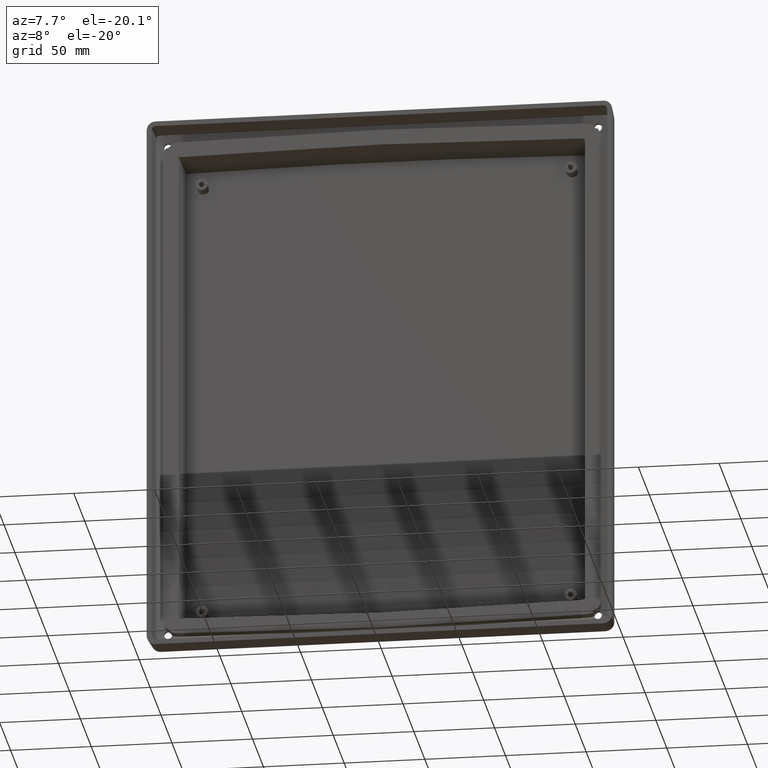
[diagram: clean part render]
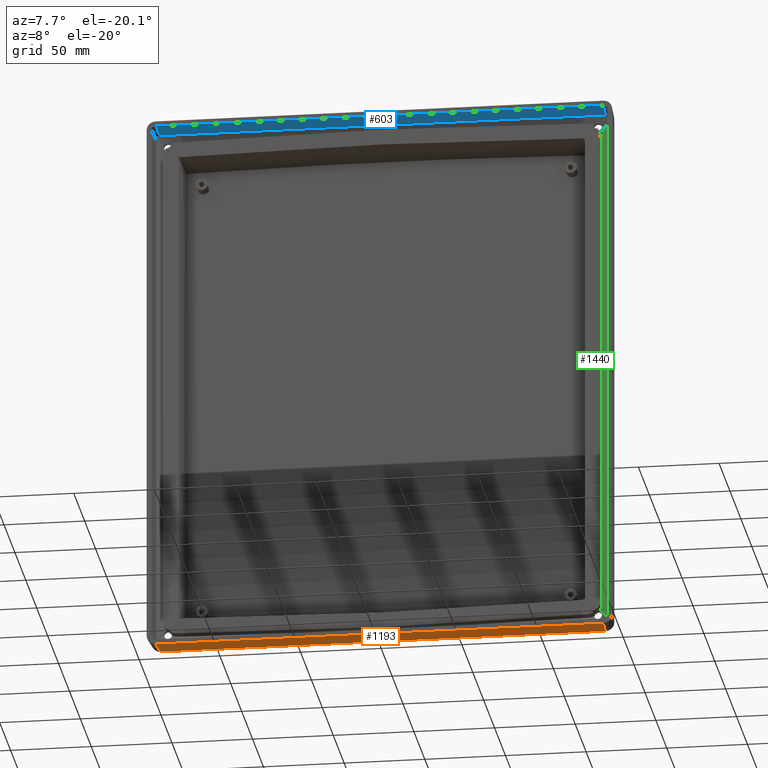
[diagram: same view with three faces highlighted in distinct colors, each labeled with its STEP entity id]
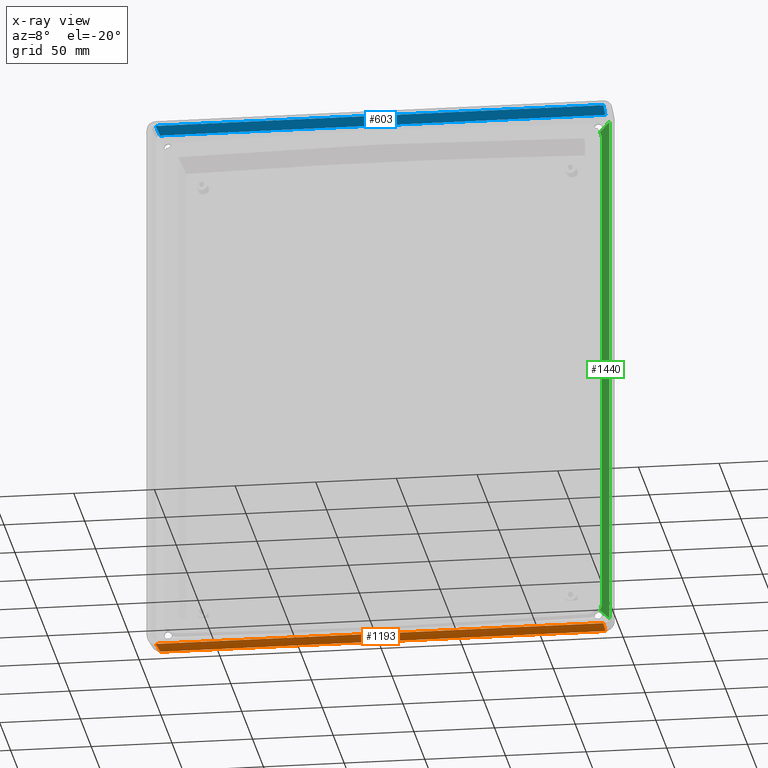
[diagram: x-ray of the same camera — body ghosted, the three highlighted faces saturated]
A machine part, auxiliary view with three faces highlighted in distinct colors.
The next image is the same camera in x-ray (body ghosted, the three faces saturated) — at least one of them is partly hidden behind the body in this view.
Their STEP definitions:

[orange] entity #1193 — the highlighted planar face has unit normal (-0, 0.0523, -0.9986).
#281 = CARTESIAN_POINT ( 'NONE',  ( 137.9152123604510200, 8.440067571076294700, -170.0576748016010500 ) ) ;
#315 = CARTESIAN_POINT ( 'NONE',  ( 136.8464257797896800, 8.467449213979881200, -170.0562397905033500 ) ) ;
#366 = CARTESIAN_POINT ( 'NONE',  ( -137.5866678021376400, 14.70907119626331500, -169.7291302432876700 ) ) ;
#643 = DIRECTION ( 'NONE',  ( 0.0000000000000000000, 0.9986295347545739400, 0.05233595624294395300 ) ) ;
#675 = CARTESIAN_POINT ( 'NONE',  ( 137.8162624004990000, 8.467449213979877600, -170.0562397905033500 ) ) ;
#764 = VECTOR ( 'NONE', #6205, 1000.000000000000200 ) ;
#1117 = DIRECTION ( 'NONE',  ( -0.0000000000000000000, 0.05233595624294395300, -0.9986295347545739400 ) ) ;
#1123 = VERTEX_POINT ( 'NONE', #4908 ) ;
#1193 = ADVANCED_FACE ( 'NONE', ( #5084 ), #2160, .T. ) ;
#1216 = CARTESIAN_POINT ( 'NONE',  ( -138.7767997931142100, -7.999999999999996400, -170.9192622342643200 ) ) ;
#1300 = ORIENTED_EDGE ( 'NONE', *, *, #5568, .T. ) ;
#1462 = CARTESIAN_POINT ( 'NONE',  ( -136.8464257797896300, 8.467449213979881200, -170.0562397905033500 ) ) ;
#1614 = VERTEX_POINT ( 'NONE', #1750 ) ;
#1627 = EDGE_CURVE ( 'NONE', #4216, #2292, #2749, .T. ) ;
#1691 = CARTESIAN_POINT ( 'NONE',  ( 136.3151442959592400, 8.467449213979877600, -170.0562397905033500 ) ) ;
#1699 = DIRECTION ( 'NONE',  ( 0.05226442768871404600, -0.9972646886342372300, -0.05226442768871403200 ) ) ;
#1750 = CARTESIAN_POINT ( 'NONE',  ( -136.3151442959592100, 8.467449213979877600, -170.0562397905033500 ) ) ;
#2003 = EDGE_LOOP ( 'NONE', ( #3831, #5526, #3432, #2868, #6070, #1300 ) ) ;
#2127 = DIRECTION ( 'NONE',  ( 1.000000000000000000, -0.0000000000000000000, -0.0000000000000000000 ) ) ;
#2141 = VERTEX_POINT ( 'NONE', #3535 ) ;
#2160 = PLANE ( 'NONE',  #5912 ) ;
#2164 = CARTESIAN_POINT ( 'NONE',  ( 138.3725406066862400, -0.2862752064970354200, -170.5150030478363000 ) ) ;
#2250 = CARTESIAN_POINT ( 'NONE',  ( 137.9152123604510200, 8.440067571076294700, -170.0576748016010500 ) ) ;
#2292 = VERTEX_POINT ( 'NONE', #2696 ) ;
#2302 = DIRECTION ( 'NONE',  ( 1.000000000000000000, -0.0000000000000000000, -0.0000000000000000000 ) ) ;
#2321 = VERTEX_POINT ( 'NONE', #2250 ) ;
#2639 = EDGE_CURVE ( 'NONE', #2321, #2141, #6273, .T. ) ;
#2696 = CARTESIAN_POINT ( 'NONE',  ( -137.9152123604510200, 8.440067571076300000, -170.0576748016010500 ) ) ;
#2711 = VECTOR ( 'NONE', #1699, 1000.000000000000200 ) ;
#2749 = LINE ( 'NONE', #366, #764 ) ;
#2868 = ORIENTED_EDGE ( 'NONE', *, *, #5927, .F. ) ;
#2924 = EDGE_CURVE ( 'NONE', #1123, #2321, #4514, .T. ) ;
#3078 =( BOUNDED_CURVE ( )  B_SPLINE_CURVE ( 3, ( #5829, #5363, #1462, #6290 ),
 .UNSPECIFIED., .F., .F. ) 
 B_SPLINE_CURVE_WITH_KNOTS ( ( 4, 4 ),
 ( 1.890229128489397300, 1.936731009849348000 ),
 .UNSPECIFIED. ) 
 CURVE ( )  GEOMETRIC_REPRESENTATION_ITEM ( )  RATIONAL_B_SPLINE_CURVE ( ( 1.000000000000000000, 0.9998198060372166500, 0.9998198060372166500, 1.000000000000000000 ) ) 
 REPRESENTATION_ITEM ( '' )  );
#3292 = VECTOR ( 'NONE', #2302, 1000.000000000000000 ) ;
#3432 = ORIENTED_EDGE ( 'NONE', *, *, #2639, .T. ) ;
#3535 = CARTESIAN_POINT ( 'NONE',  ( 138.7767997931142600, -7.999999999999996400, -170.9192622342643200 ) ) ;
#3611 = LINE ( 'NONE', #6165, #3292 ) ;
#3831 = ORIENTED_EDGE ( 'NONE', *, *, #4244, .T. ) ;
#4216 = VERTEX_POINT ( 'NONE', #1216 ) ;
#4244 = EDGE_CURVE ( 'NONE', #1614, #1123, #6101, .T. ) ;
#4514 =( BOUNDED_CURVE ( )  B_SPLINE_CURVE ( 3, ( #1691, #315, #5067, #281 ),
 .UNSPECIFIED., .F., .F. ) 
 B_SPLINE_CURVE_WITH_KNOTS ( ( 4, 4 ),
 ( 4.346454297330240000, 4.392956178690188700 ),
 .UNSPECIFIED. ) 
 CURVE ( )  GEOMETRIC_REPRESENTATION_ITEM ( )  RATIONAL_B_SPLINE_CURVE ( ( 1.000000000000000000, 0.9998198060372166500, 0.9998198060372166500, 1.000000000000000000 ) ) 
 REPRESENTATION_ITEM ( '' )  );
#4762 = VECTOR ( 'NONE', #2127, 1000.000000000000000 ) ;
#4908 = CARTESIAN_POINT ( 'NONE',  ( 136.3151442959592400, 8.467449213979877600, -170.0562397905033500 ) ) ;
#5067 = CARTESIAN_POINT ( 'NONE',  ( 137.3798779261431100, 8.458320354713361400, -170.0567182137449200 ) ) ;
#5084 = FACE_OUTER_BOUND ( 'NONE', #2003, .T. ) ;
#5363 = CARTESIAN_POINT ( 'NONE',  ( -137.3798779261431100, 8.458320354713357900, -170.0567182137449200 ) ) ;
#5511 = CARTESIAN_POINT ( 'NONE',  ( 143.8500000000000800, 0.0000000000000000000, -170.4999999999999700 ) ) ;
#5526 = ORIENTED_EDGE ( 'NONE', *, *, #2924, .T. ) ;
#5568 = EDGE_CURVE ( 'NONE', #2292, #1614, #3078, .T. ) ;
#5829 = CARTESIAN_POINT ( 'NONE',  ( -137.9152123604510200, 8.440067571076300000, -170.0576748016010500 ) ) ;
#5912 = AXIS2_PLACEMENT_3D ( 'NONE', #5511, #1117, #643 ) ;
#5927 = EDGE_CURVE ( 'NONE', #4216, #2141, #3611, .T. ) ;
#6070 = ORIENTED_EDGE ( 'NONE', *, *, #1627, .T. ) ;
#6101 = LINE ( 'NONE', #675, #4762 ) ;
#6165 = CARTESIAN_POINT ( 'NONE',  ( 143.8500000000000800, -7.999999999999996400, -170.9192622342643200 ) ) ;
#6205 = DIRECTION ( 'NONE',  ( 0.05226442768871406700, 0.9972646886342372300, 0.05226442768871403200 ) ) ;
#6273 = LINE ( 'NONE', #2164, #2711 ) ;
#6290 = CARTESIAN_POINT ( 'NONE',  ( -136.3151442959592100, 8.467449213979877600, -170.0562397905033500 ) ) ;

[blue] entity #603 — the highlighted planar face has unit normal (0, 0.0523, 0.9986).
#62 = CARTESIAN_POINT ( 'NONE',  ( -138.7685713593840500, -7.999999999999998200, 167.9151451962706600 ) ) ;
#83 = ORIENTED_EDGE ( 'NONE', *, *, #4878, .F. ) ;
#332 = VERTEX_POINT ( 'NONE', #2533 ) ;
#401 = CARTESIAN_POINT ( 'NONE',  ( -136.4349168177184000, 7.130623004086821500, 167.1221828454575900 ) ) ;
#603 = ADVANCED_FACE ( 'NONE', ( #4397 ), #2335, .F. ) ;
#678 = VERTEX_POINT ( 'NONE', #3771 ) ;
#884 = VERTEX_POINT ( 'NONE', #4245 ) ;
#914 = CARTESIAN_POINT ( 'NONE',  ( -135.6694227875672400, 7.130623004086811700, 167.1221828454575900 ) ) ;
#1174 = VECTOR ( 'NONE', #3449, 1000.000000000000100 ) ;
#1192 = CARTESIAN_POINT ( 'NONE',  ( 135.6694227875672700, 7.130623004086817000, 167.1221828454575300 ) ) ;
#1256 = CARTESIAN_POINT ( 'NONE',  ( -143.3259222071695000, 7.130623004086818800, 167.1221828454575900 ) ) ;
#1467 = ORIENTED_EDGE ( 'NONE', *, *, #5158, .F. ) ;
#1603 = CARTESIAN_POINT ( 'NONE',  ( -143.8499999999999100, -7.999999999999996400, 167.9151451962706600 ) ) ;
#1905 =( BOUNDED_CURVE ( )  B_SPLINE_CURVE ( 3, ( #5497, #5475, #2597, #5956 ),
 .UNSPECIFIED., .F., .F. ) 
 B_SPLINE_CURVE_WITH_KNOTS ( ( 4, 4 ),
 ( 1.865676848984718200, 1.936731009849348000 ),
 .UNSPECIFIED. ) 
 CURVE ( )  GEOMETRIC_REPRESENTATION_ITEM ( )  RATIONAL_B_SPLINE_CURVE ( ( 1.000000000000000000, 0.9995793197690625600, 0.9995793197690625600, 1.000000000000000000 ) ) 
 REPRESENTATION_ITEM ( '' )  );
#2257 = DIRECTION ( 'NONE',  ( -1.000000000000000000, 1.516529711244633500E-019, 1.929400926329865600E-016 ) ) ;
#2322 = LINE ( 'NONE', #1603, #4564 ) ;
#2335 = PLANE ( 'NONE',  #2442 ) ;
#2442 = AXIS2_PLACEMENT_3D ( 'NONE', #4753, #5209, #4251 ) ;
#2533 = CARTESIAN_POINT ( 'NONE',  ( 138.7685713593841700, -7.999999999999996400, 167.9151451962706000 ) ) ;
#2568 = VECTOR ( 'NONE', #2257, 1000.000000000000000 ) ;
#2589 = DIRECTION ( 'NONE',  ( -0.05226442768871402500, 0.9972646886342372300, -0.05226442768871402500 ) ) ;
#2597 = CARTESIAN_POINT ( 'NONE',  ( 136.4349168177184600, 7.130623004086828600, 167.1221828454575600 ) ) ;
#2642 = LINE ( 'NONE', #1256, #2568 ) ;
#3235 = EDGE_LOOP ( 'NONE', ( #4051, #5111, #6301, #83, #3673, #1467 ) ) ;
#3370 = VECTOR ( 'NONE', #2589, 1000.000000000000100 ) ;
#3426 = VERTEX_POINT ( 'NONE', #1192 ) ;
#3449 = DIRECTION ( 'NONE',  ( -0.05226442768871401200, -0.9972646886342372300, 0.05226442768871403900 ) ) ;
#3654 = EDGE_CURVE ( 'NONE', #4291, #5616, #4036, .T. ) ;
#3673 = ORIENTED_EDGE ( 'NONE', *, *, #6162, .F. ) ;
#3771 = CARTESIAN_POINT ( 'NONE',  ( -135.6694227875672400, 7.130623004086811700, 167.1221828454575900 ) ) ;
#3839 = EDGE_CURVE ( 'NONE', #678, #4291, #5406, .T. ) ;
#3850 = CARTESIAN_POINT ( 'NONE',  ( -137.9787671725336200, 7.070361645833148000, 167.1253410094202300 ) ) ;
#4036 = LINE ( 'NONE', #4849, #1174 ) ;
#4051 = ORIENTED_EDGE ( 'NONE', *, *, #6083, .T. ) ;
#4245 = CARTESIAN_POINT ( 'NONE',  ( 137.9787671725337400, 7.070361645833151500, 167.1253410094201700 ) ) ;
#4251 = DIRECTION ( 'NONE',  ( 0.0000000000000000000, -0.9986295347545739400, 0.05233595624294395300 ) ) ;
#4291 = VERTEX_POINT ( 'NONE', #5155 ) ;
#4397 = FACE_OUTER_BOUND ( 'NONE', #3235, .T. ) ;
#4507 = CARTESIAN_POINT ( 'NONE',  ( 138.3725406066861900, -0.4432830752258669100, 167.5191144435726200 ) ) ;
#4564 = VECTOR ( 'NONE', #5522, 1000.000000000000000 ) ;
#4753 = CARTESIAN_POINT ( 'NONE',  ( 143.8500000000000200, -0.1570078687288318500, 167.5041113957363200 ) ) ;
#4849 = CARTESIAN_POINT ( 'NONE',  ( -137.5866678021374700, 14.55206332753445700, 166.7332416390240700 ) ) ;
#4878 = EDGE_CURVE ( 'NONE', #3426, #678, #2642, .T. ) ;
#5111 = ORIENTED_EDGE ( 'NONE', *, *, #3654, .F. ) ;
#5128 = LINE ( 'NONE', #4507, #3370 ) ;
#5155 = CARTESIAN_POINT ( 'NONE',  ( -137.9787671725336200, 7.070361645833148000, 167.1253410094202300 ) ) ;
#5158 = EDGE_CURVE ( 'NONE', #332, #884, #5128, .T. ) ;
#5209 = DIRECTION ( 'NONE',  ( 1.926836118448446800E-016, 0.05233595624294395300, 0.9986295347545739400 ) ) ;
#5406 =( BOUNDED_CURVE ( )  B_SPLINE_CURVE ( 3, ( #914, #401, #6300, #3850 ),
 .UNSPECIFIED., .F., .F. ) 
 B_SPLINE_CURVE_WITH_KNOTS ( ( 4, 4 ),
 ( 4.346454297330240000, 4.417508458194866700 ),
 .UNSPECIFIED. ) 
 CURVE ( )  GEOMETRIC_REPRESENTATION_ITEM ( )  RATIONAL_B_SPLINE_CURVE ( ( 1.000000000000000000, 0.9995793197690625600, 0.9995793197690625600, 1.000000000000000000 ) ) 
 REPRESENTATION_ITEM ( '' )  );
#5475 = CARTESIAN_POINT ( 'NONE',  ( 137.2050222475039900, 7.110527430858550000, 167.1232360098238400 ) ) ;
#5497 = CARTESIAN_POINT ( 'NONE',  ( 137.9787671725337400, 7.070361645833151500, 167.1253410094201700 ) ) ;
#5522 = DIRECTION ( 'NONE',  ( -1.000000000000000000, 0.0000000000000000000, 1.929480404284249000E-016 ) ) ;
#5616 = VERTEX_POINT ( 'NONE', #62 ) ;
#5956 = CARTESIAN_POINT ( 'NONE',  ( 135.6694227875672700, 7.130623004086817000, 167.1221828454575300 ) ) ;
#6083 = EDGE_CURVE ( 'NONE', #332, #5616, #2322, .T. ) ;
#6162 = EDGE_CURVE ( 'NONE', #884, #3426, #1905, .T. ) ;
#6300 = CARTESIAN_POINT ( 'NONE',  ( -137.2050222475038800, 7.110527430858544700, 167.1232360098239000 ) ) ;
#6301 = ORIENTED_EDGE ( 'NONE', *, *, #3839, .F. ) ;

[green] entity #1440 — the highlighted planar face has unit normal (0.2079, 0.9781, 0).
#25 = AXIS2_PLACEMENT_3D ( 'NONE', #1601, #4916, #4896 ) ;
#110 = VECTOR ( 'NONE', #247, 999.9999999999998900 ) ;
#247 = DIRECTION ( 'NONE',  ( 0.6992527780868756900, -0.1486307662483552000, 0.6992527780868756900 ) ) ;
#255 = ORIENTED_EDGE ( 'NONE', *, *, #3069, .F. ) ;
#331 = CARTESIAN_POINT ( 'NONE',  ( 140.4721828454575200, 7.130623004086817000, 162.3194227875673300 ) ) ;
#374 = CARTESIAN_POINT ( 'NONE',  ( 145.3129951259665500, 6.101676590051827300, -167.1602350680763300 ) ) ;
#379 = VECTOR ( 'NONE', #5834, 1000.000000000000000 ) ;
#394 = CARTESIAN_POINT ( 'NONE',  ( 135.7451935338436600, 8.135375599214391700, 151.8740643045675500 ) ) ;
#868 = CARTESIAN_POINT ( 'NONE',  ( 135.7451935338436300, 8.135375599214386400, 153.4634367417952500 ) ) ;
#965 = LINE ( 'NONE', #4616, #3304 ) ;
#1273 = CARTESIAN_POINT ( 'NONE',  ( 135.7451935338436600, 8.135375599214402300, -151.8740643045675500 ) ) ;
#1278 = VERTEX_POINT ( 'NONE', #2266 ) ;
#1435 = CARTESIAN_POINT ( 'NONE',  ( 135.7451935338436600, 8.135375599214402300, -151.8740643045675500 ) ) ;
#1440 = ADVANCED_FACE ( 'NONE', ( #1689 ), #1558, .F. ) ;
#1538 = LINE ( 'NONE', #4905, #379 ) ;
#1558 = PLANE ( 'NONE',  #25 ) ;
#1567 = LINE ( 'NONE', #3600, #110 ) ;
#1589 = EDGE_LOOP ( 'NONE', ( #1995, #5696, #5276, #3094, #255, #2115 ) ) ;
#1601 = CARTESIAN_POINT ( 'NONE',  ( 142.6190224583892200, 6.674298157505058200, 169.9759222071696200 ) ) ;
#1689 = FACE_OUTER_BOUND ( 'NONE', #1589, .T. ) ;
#1772 = DIRECTION ( 'NONE',  ( 1.203121388569646700E-018, 3.445288881317348700E-017, -1.000000000000000000 ) ) ;
#1854 = VERTEX_POINT ( 'NONE', #3884 ) ;
#1881 = CARTESIAN_POINT ( 'NONE',  ( 135.3281514300221300, 8.224020634874312600, 154.9988153013831600 ) ) ;
#1995 = ORIENTED_EDGE ( 'NONE', *, *, #2669, .F. ) ;
#2115 = ORIENTED_EDGE ( 'NONE', *, *, #3997, .T. ) ;
#2266 = CARTESIAN_POINT ( 'NONE',  ( 134.5237350877430600, 8.395004606740345200, -156.3709750298528700 ) ) ;
#2362 = DIRECTION ( 'NONE',  ( -0.6992527780868758000, 0.1486307662483551400, 0.6992527780868756900 ) ) ;
#2669 = EDGE_CURVE ( 'NONE', #5790, #3539, #1567, .T. ) ;
#2787 = CARTESIAN_POINT ( 'NONE',  ( 135.3281514300221600, 8.224020634874326800, -154.9988153013831000 ) ) ;
#2797 = CARTESIAN_POINT ( 'NONE',  ( 134.5237350877430600, 8.395004606740334600, 156.3709750298529000 ) ) ;
#2984 = EDGE_CURVE ( 'NONE', #5790, #1854, #5388, .T. ) ;
#3069 = EDGE_CURVE ( 'NONE', #5907, #1278, #3525, .T. ) ;
#3094 = ORIENTED_EDGE ( 'NONE', *, *, #4874, .T. ) ;
#3152 = VECTOR ( 'NONE', #2362, 1000.000000000000000 ) ;
#3304 = VECTOR ( 'NONE', #1772, 1000.000000000000000 ) ;
#3525 = LINE ( 'NONE', #374, #3152 ) ;
#3539 = VERTEX_POINT ( 'NONE', #331 ) ;
#3600 = CARTESIAN_POINT ( 'NONE',  ( 145.3129951259665500, 6.101676590051813100, 167.1602350680763600 ) ) ;
#3751 = CARTESIAN_POINT ( 'NONE',  ( 140.4721828454575500, 7.130623004086820600, -162.3194227875673600 ) ) ;
#3765 = VERTEX_POINT ( 'NONE', #1435 ) ;
#3884 = CARTESIAN_POINT ( 'NONE',  ( 135.7451935338436600, 8.135375599214391700, 151.8740643045675500 ) ) ;
#3997 = EDGE_CURVE ( 'NONE', #5907, #3539, #1538, .T. ) ;
#4080 = CARTESIAN_POINT ( 'NONE',  ( 134.5237350877430600, 8.395004606740334600, 156.3709750298529000 ) ) ;
#4378 = EDGE_CURVE ( 'NONE', #1854, #3765, #965, .T. ) ;
#4616 = CARTESIAN_POINT ( 'NONE',  ( 135.7451935338436600, 8.135375599214402300, -151.0000000000000600 ) ) ;
#4874 = EDGE_CURVE ( 'NONE', #3765, #1278, #6277, .T. ) ;
#4896 = DIRECTION ( 'NONE',  ( -0.9781476007338061300, 0.2079116908177564800, 0.0000000000000000000 ) ) ;
#4905 = CARTESIAN_POINT ( 'NONE',  ( 140.4721828454575200, 7.130623004086818800, 169.9759222071696200 ) ) ;
#4916 = DIRECTION ( 'NONE',  ( 0.2079116908177565100, 0.9781476007338062400, 3.395015353311076700E-017 ) ) ;
#5130 = CARTESIAN_POINT ( 'NONE',  ( 134.5237350877430600, 8.395004606740345200, -156.3709750298528700 ) ) ;
#5152 = CARTESIAN_POINT ( 'NONE',  ( 135.7451935338436300, 8.135375599214402300, -153.4634367417952500 ) ) ;
#5276 = ORIENTED_EDGE ( 'NONE', *, *, #4378, .T. ) ;
#5388 =( BOUNDED_CURVE ( )  B_SPLINE_CURVE ( 3, ( #2797, #1881, #868, #394 ),
 .UNSPECIFIED., .F., .F. ) 
 B_SPLINE_CURVE_WITH_KNOTS ( ( 4, 4 ),
 ( 5.556162618364437500, 6.091193649044115900 ),
 .UNSPECIFIED. ) 
 CURVE ( )  GEOMETRIC_REPRESENTATION_ITEM ( )  RATIONAL_B_SPLINE_CURVE ( ( 1.000000000000000000, 0.9762870742210167900, 0.9762870742210167900, 1.000000000000000000 ) ) 
 REPRESENTATION_ITEM ( '' )  );
#5696 = ORIENTED_EDGE ( 'NONE', *, *, #2984, .T. ) ;
#5790 = VERTEX_POINT ( 'NONE', #4080 ) ;
#5834 = DIRECTION ( 'NONE',  ( -1.627836456200740500E-016, -1.078881496857150700E-019, 1.000000000000000000 ) ) ;
#5907 = VERTEX_POINT ( 'NONE', #3751 ) ;
#6277 =( BOUNDED_CURVE ( )  B_SPLINE_CURVE ( 3, ( #1273, #5152, #2787, #5130 ),
 .UNSPECIFIED., .F., .F. ) 
 B_SPLINE_CURVE_WITH_KNOTS ( ( 4, 4 ),
 ( 0.1919916581354707000, 0.7270226888151465300 ),
 .UNSPECIFIED. ) 
 CURVE ( )  GEOMETRIC_REPRESENTATION_ITEM ( )  RATIONAL_B_SPLINE_CURVE ( ( 1.000000000000000000, 0.9762870742210170100, 0.9762870742210170100, 1.000000000000000000 ) ) 
 REPRESENTATION_ITEM ( '' )  );